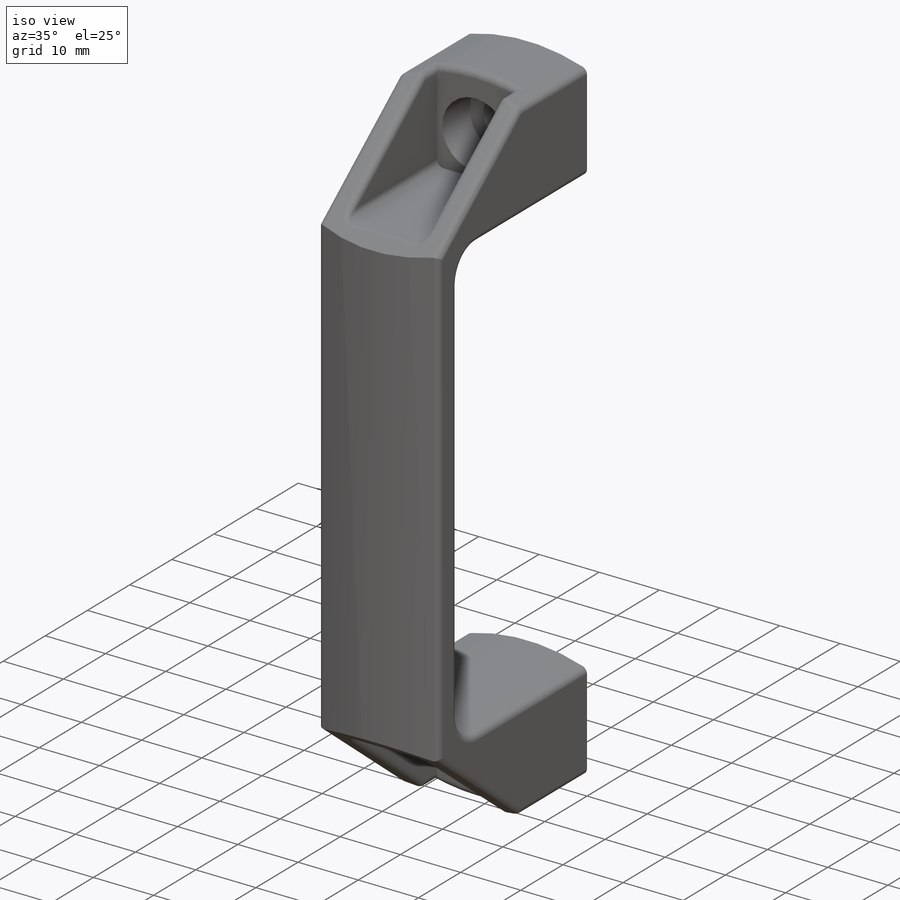
[diagram: iso view]
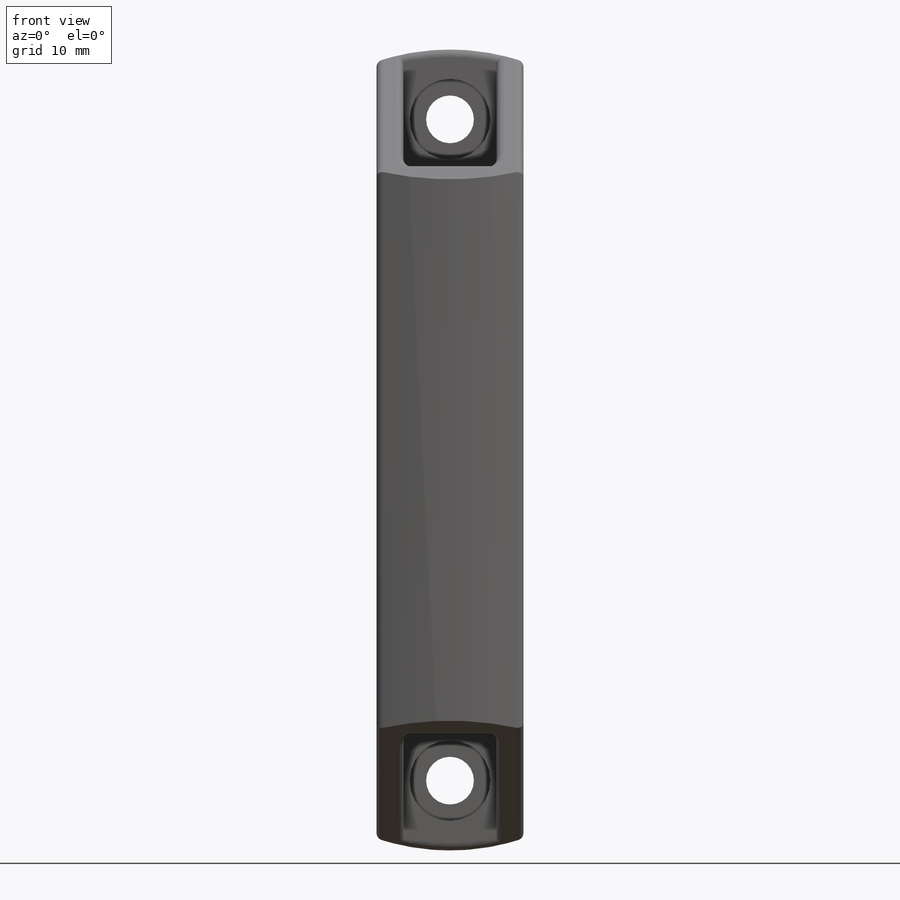
[diagram: front view]
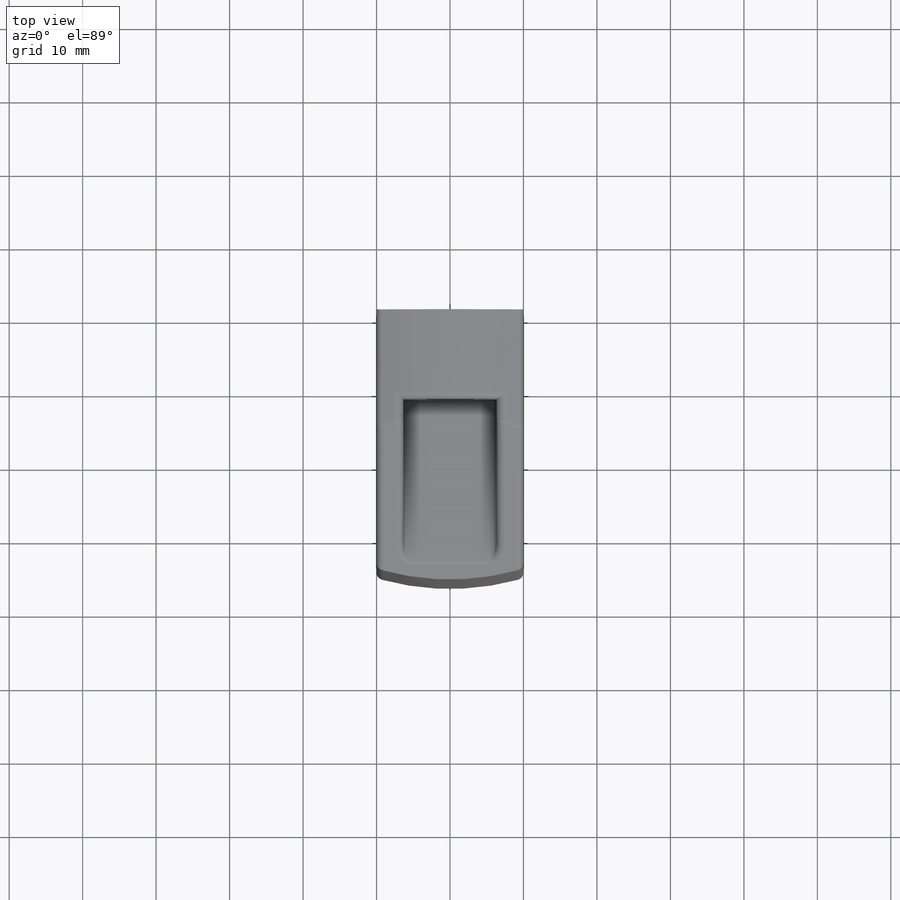
[diagram: top view]
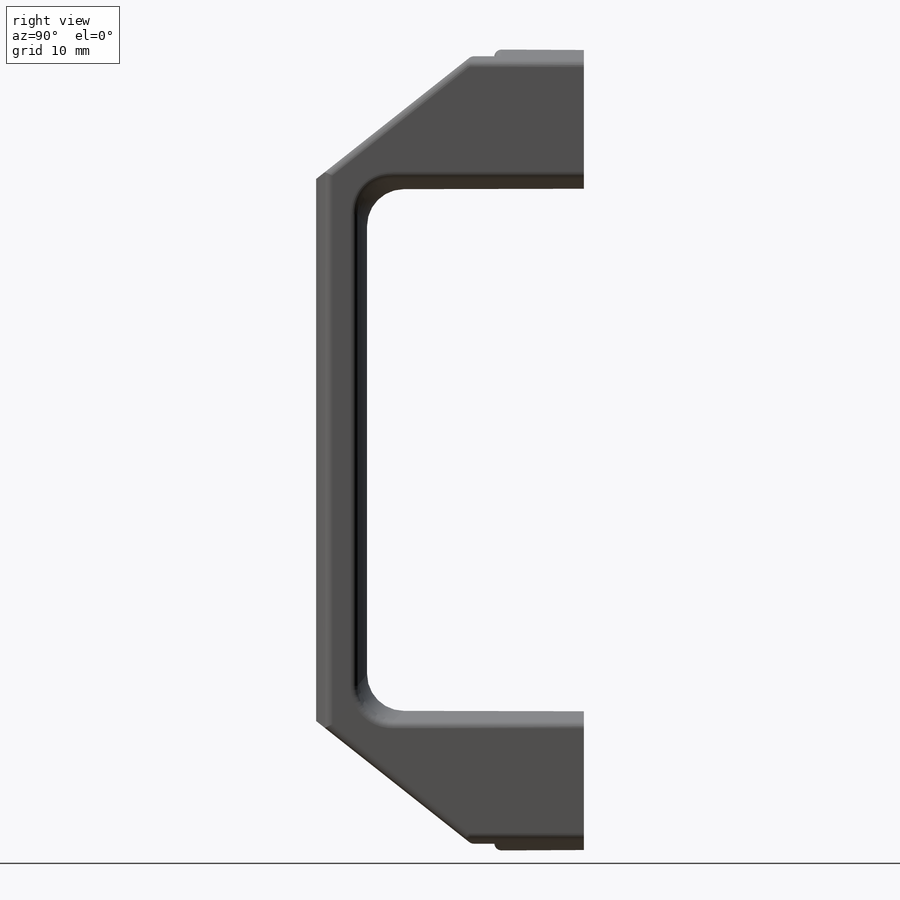
[diagram: right view]
SOLIDWORKS PART (.sldprt)
format: sldprt  version: not decoded by parser v0  size: 384,000 bytes
history: native  units: mm
features: sketch x5, cut_extrude x3, fillet x3, extrude x2, material x1, mirror x1 (+13 scaffold rows collapsed)
feature tree (28):
  scaffold x13  (default folders/planes/origin — collapsed)
  material  "Nylon 6/10"
  sketch  "Sketch1"  dims[c1.D1=6.5mm c1.D3=~19.026829mm c2.D3=~19.026829mm c3.D3=~19.026829mm c4.D3=~19.026829mm c4.D2=20.0mm c5.D3=19.0mm c5.D4=~13.432101mm c5.D5=~13.432101mm c6.D4=15.7mm c6.D5=45.0mm]
  extrude  "Boss-Extrude1"  Depth=35mm
  sketch  "Sketch2"  dims[c1.D1=12.7mm c1.D2=15.25mm c2.D1=12.7mm c2.D2=15.25mm]
  cut_extrude  "Cut-Extrude1"  Depth=12.2mm
  sketch  "Sketch5"  dims[D1=6.985mm D2=4.0mm]
  extrude  "Boss-Extrude2"  [1 undecoded]
  sketch  "Sketch3"  dims[D1=15.0mm D2=17.0mm]
  cut_extrude  "Cut-Extrude2"  [1 undecoded]
  sketch  "Sketch6"  dims[D1=11.0mm]
  cut_extrude  "Cut-Extrude3"  Depth=6.5mm
  fillet  "Fillet1"  Radius=5mm
  fillet  "Fillet2"  Radius=1mm
  fillet  "Fillet3"  Radius=1mm
  mirror  "Mirror3"
decode coverage: 11 of 14 modeling features carry decoded parameters
note: ~ marks probable driven/reference dimensions
note: 2 parameter values undecoded
note: suppression state not decoded; provenance and decode notes live in map.json
